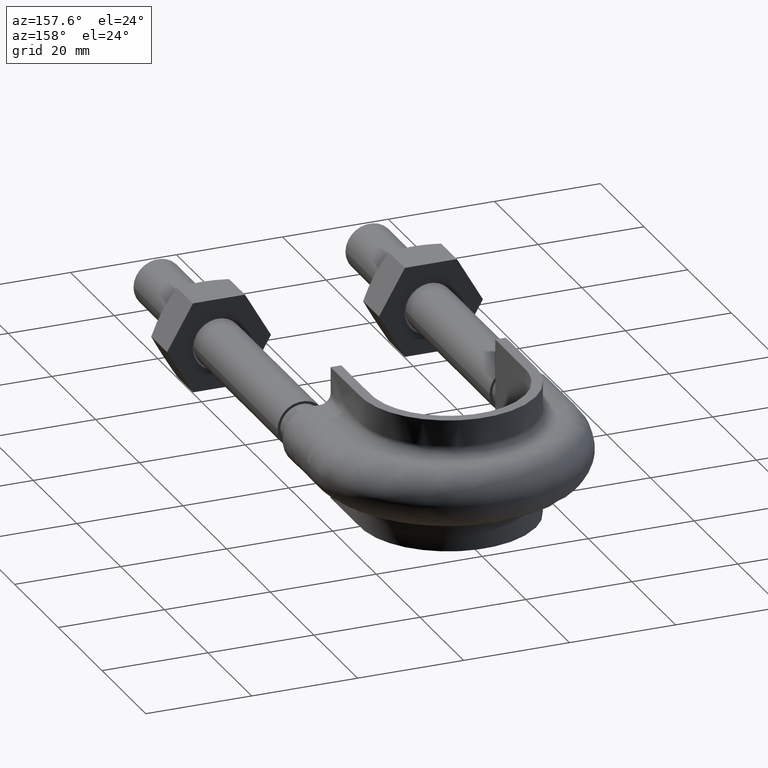
[diagram: clean part render]
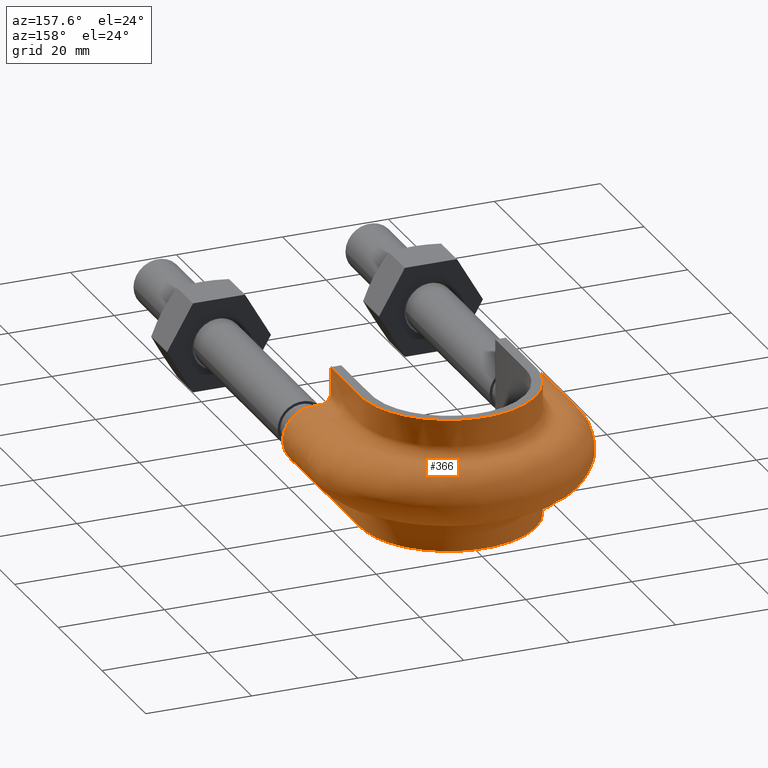
[diagram: same view with one face highlighted and labeled with its STEP entity id]
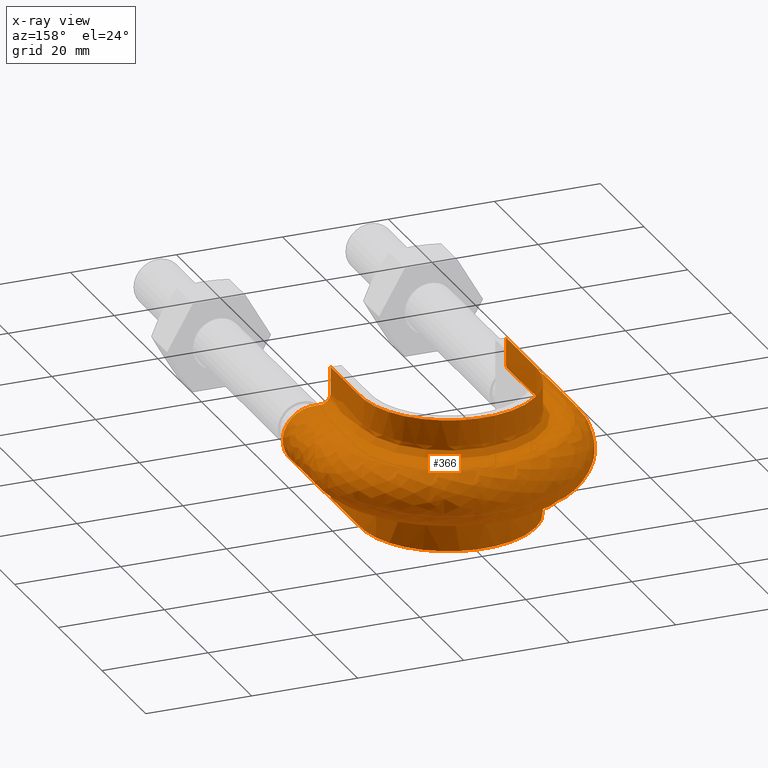
[diagram: x-ray of the same camera — body ghosted, the highlighted face saturated]
A machine part, auxiliary view. The second image highlights one B-rep face of the part: STEP entity #366.
The next image is the same camera in x-ray: the body ghosted, the highlighted face saturated — about 0% of this face is hidden behind the body in this view.
In plain terms, the highlighted face is a freeform B-spline surface patch.
Its self-contained STEP definition (entity closure, byte-faithful):
#366 = ADVANCED_FACE( '', ( #444 ), #445, .F. );
#444 = FACE_OUTER_BOUND( '', #609, .T. );
#445 = B_SPLINE_SURFACE_WITH_KNOTS( '', 3, 3, ( ( #610, #611, #612, #613, #614, #615, #616, #617, #618, #619, #620, #621, #622, #623, #624, #625 ), ( #626, #627, #628, #629, #630, #631, #632, #633, #634, #635, #636, #637, #638, #639, #640, #641 ), ( #642, #643, #644, #645, #646, #647, #648, #649, #650, #651, #652, #653, #654, #655, #656, #657 ), ( #658, #659, #660, #661, #662, #663, #664, #665, #666, #667, #668, #669, #670, #671, #672, #673 ), ( #674, #675, #676, #677, #678, #679, #680, #681, #682, #683, #684, #685, #686, #687, #688, #689 ), ( #690, #691, #692, #693, #694, #695, #696, #697, #698, #699, #700, #701, #702, #703, #704, #705 ), ( #706, #707, #708, #709, #710, #711, #712, #713, #714, #715, #716, #717, #718, #719, #720, #721 ), ( #722, #723, #724, #725, #726, #727, #728, #729, #730, #731, #732, #733, #734, #735, #736, #737 ), ( #738, #739, #740, #741, #742, #743, #744, #745, #746, #747, #748, #749, #750, #751, #752, #753 ), ( #754, #755, #756, #757, #758, #759, #760, #761, #762, #763, #764, #765, #766, #767, #768, #769 ), ( #770, #771, #772, #773, #774, #775, #776, #777, #778, #779, #780, #781, #782, #783, #784, #785 ), ( #786, #787, #788, #789, #790, #791, #792, #793, #794, #795, #796, #797, #798, #799, #800, #801 ), ( #802, #803, #804, #805, #806, #807, #808, #809, #810, #811, #812, #813, #814, #815, #816, #817 ), ( #818, #819, #820, #821, #822, #823, #824, #825, #826, #827, #828, #829, #830, #831, #832, #833 ), ( #834, #835, #836, #837, #838, #839, #840, #841, #842, #843, #844, #845, #846, #847, #848, #849 ), ( #850, #851, #852, #853, #854, #855, #856, #857, #858, #859, #860, #861, #862, #863, #864, #865 ), ( #866, #867, #868, #869, #870, #871, #872, #873, #874, #875, #876, #877, #878, #879, #880, #881 ), ( #882, #883, #884, #885, #886, #887, #888, #889, #890, #891, #892, #893, #894, #895, #896, #897 ), ( #898, #899, #900, #901, #902, #903, #904, #905, #906, #907, #908, #909, #910, #911, #912, #913 ), ( #914, #915, #916, #917, #918, #919, #920, #921, #922, #923, #924, #925, #926, #927, #928, #929 ), ( #930, #931, #932, #933, #934, #935, #936, #937, #938, #939, #940, #941, #942, #943, #944, #945 ), ( #946, #947, #948, #949, #950, #951, #952, #953, #954, #955, #956, #957, #958, #959, #960, #961 ), ( #962, #963, #964, #965, #966, #967, #968, #969, #970, #971, #972, #973, #974, #975, #976, #977 ), ( #978, #979, #980, #981, #982, #983, #984, #985, #986, #987, #988, #989, #990, #991, #992, #993 ), ( #994, #995, #996, #997, #998, #999, #1000, #1001, #1002, #1003, #1004, #1005, #1006, #1007, #1008, #1009 ), ( #1010, #1011, #1012, #1013, #1014, #1015, #1016, #1017, #1018, #1019, #1020, #1021, #1022, #1023, #1024, #1025 ), ( #1026, #1027, #1028, #1029, #1030, #1031, #1032, #1033, #1034, #1035, #1036, #1037, #1038, #1039, #1040, #1041 ), ( #1042, #1043, #1044, #1045, #1046, #1047, #1048, #1049, #1050, #1051, #1052, #1053, #1054, #1055, #1056, #1057 ), ( #1058, #1059, #1060, #1061, #1062, #1063, #1064, #1065, #1066, #1067, #1068, #1069, #1070, #1071, #1072, #1073 ), ( #1074, #1075, #1076, #1077, #1078, #1079, #1080, #1081, #1082, #1083, #1084, #1085, #1086, #1087, #1088, #1089 ), ( #1090, #1091, #1092, #1093, #1094, #1095, #1096, #1097, #1098, #1099, #1100, #1101, #1102, #1103, #1104, #1105 ) ), .UNSPECIFIED., .F., .F., .F., ( 4, 3, 1, 1, 1, 3, 3, 1, 1, 1, 3, 3, 1, 1, 1, 3, 4 ), ( 4, 3, 1, 1, 1, 1, 1, 1, 3, 4 ), ( 0.000000000000000, 0.0526315789473684, 0.105263157894737, 0.157894736842105, 0.210526315789474, 0.263157894736842, 0.315789473684211, 0.368421052631579, 0.421052631578947, 0.473684210526316, 0.526315789473684, 0.578947368421053, 0.631578947368421, 0.684210526315789, 0.736842105263158, 0.789473684210526, 0.842105263157895 ), ( 0.000000000000000, 1.00000000000000, 1.50000000000000, 2.00000000000000, 3.00000000000000, 4.00000000000000, 5.00000000000000, 5.50000000000000, 6.00000000000000, 7.00000000000000 ), .UNSPECIFIED. );
#609 = EDGE_LOOP( '', ( #1615, #1616, #1617, #1618 ) );
#610 = CARTESIAN_POINT( '', ( -16.5400000000000, 68.3700000000000, 12.5000000000000 ) );
#611 = CARTESIAN_POINT( '', ( -16.5400000000000, 73.7366666666667, 12.5000000000000 ) );
#612 = CARTESIAN_POINT( '', ( -16.5400000000000, 79.1033333333333, 12.5000000000000 ) );
#613 = CARTESIAN_POINT( '', ( -16.5400000000000, 84.4700000000000, 12.5000000000000 ) );
#614 = CARTESIAN_POINT( '', ( -16.5400000000000, 86.1877537522751, 12.5000000000000 ) );
#615 = CARTESIAN_POINT( '', ( -15.9750629169901, 89.6663680937660, 12.5000000000000 ) );
#616 = CARTESIAN_POINT( '', ( -12.8204249288649, 95.9196671029178, 12.5000000000000 ) );
#617 = CARTESIAN_POINT( '', ( -5.45797735968996, 101.270676698673, 12.5000000000000 ) );
#618 = CARTESIAN_POINT( '', ( 5.45797735969001, 101.270676698673, 12.5000000000000 ) );
#619 = CARTESIAN_POINT( '', ( 12.8204249288649, 95.9196671029177, 12.5000000000000 ) );
#620 = CARTESIAN_POINT( '', ( 15.9750629169902, 89.6663680937660, 12.5000000000000 ) );
#621 = CARTESIAN_POINT( '', ( 16.5400000000000, 86.1877537522751, 12.5000000000000 ) );
#622 = CARTESIAN_POINT( '', ( 16.5400000000000, 84.4700000000000, 12.5000000000000 ) );
#623 = CARTESIAN_POINT( '', ( 16.5400000000000, 79.1033333333333, 12.5000000000000 ) );
#624 = CARTESIAN_POINT( '', ( 16.5400000000000, 73.7366666666667, 12.5000000000000 ) );
#625 = CARTESIAN_POINT( '', ( 16.5400000000000, 68.3700000000000, 12.5000000000000 ) );
#626 = CARTESIAN_POINT( '', ( -16.5400000000000, 68.3700000000000, 10.8666666666667 ) );
#627 = CARTESIAN_POINT( '', ( -16.5400000000000, 73.7366666666667, 10.8666666666667 ) );
#628 = CARTESIAN_POINT( '', ( -16.5400000000000, 79.1033333333333, 10.8666666666667 ) );
#629 = CARTESIAN_POINT( '', ( -16.5400000000000, 84.4700000000000, 10.8666666666667 ) );
#630 = CARTESIAN_POINT( '', ( -16.5400000000000, 86.1877537522751, 10.8666666666667 ) );
#631 = CARTESIAN_POINT( '', ( -15.9750629169901, 89.6663680937660, 10.8666666666667 ) );
#632 = CARTESIAN_POINT( '', ( -12.8204249288649, 95.9196671029178, 10.8666666666667 ) );
#633 = CARTESIAN_POINT( '', ( -5.45797735968996, 101.270676698673, 10.8666666666667 ) );
#634 = CARTESIAN_POINT( '', ( 5.45797735969001, 101.270676698673, 10.8666666666667 ) );
#635 = CARTESIAN_POINT( '', ( 12.8204249288649, 95.9196671029177, 10.8666666666667 ) );
#636 = CARTESIAN_POINT( '', ( 15.9750629169902, 89.6663680937660, 10.8666666666667 ) );
#637 = CARTESIAN_POINT( '', ( 16.5400000000000, 86.1877537522751, 10.8666666666667 ) );
#638 = CARTESIAN_POINT( '', ( 16.5400000000000, 84.4700000000000, 10.8666666666667 ) );
#639 = CARTESIAN_POINT( '', ( 16.5400000000000, 79.1033333333333, 10.8666666666667 ) );
#640 = CARTESIAN_POINT( '', ( 16.5400000000000, 73.7366666666667, 10.8666666666667 ) );
#641 = CARTESIAN_POINT( '', ( 16.5400000000000, 68.3700000000000, 10.8666666666667 ) );
#642 = CARTESIAN_POINT( '', ( -16.5400000000000, 68.3700000000000, 9.23333333333332 ) );
#643 = CARTESIAN_POINT( '', ( -16.5400000000000, 73.7366666666667, 9.23333333333332 ) );
#644 = CARTESIAN_POINT( '', ( -16.5400000000000, 79.1033333333333, 9.23333333333332 ) );
#645 = CARTESIAN_POINT( '', ( -16.5400000000000, 84.4700000000000, 9.23333333333332 ) );
#646 = CARTESIAN_POINT( '', ( -16.5400000000000, 86.1877537522751, 9.23333333333332 ) );
#647 = CARTESIAN_POINT( '', ( -15.9750629169901, 89.6663680937660, 9.23333333333332 ) );
#648 = CARTESIAN_POINT( '', ( -12.8204249288649, 95.9196671029178, 9.23333333333332 ) );
#649 = CARTESIAN_POINT( '', ( -5.45797735968996, 101.270676698673, 9.23333333333333 ) );
#650 = CARTESIAN_POINT( '', ( 5.45797735969001, 101.270676698673, 9.23333333333331 ) );
#651 = CARTESIAN_POINT( '', ( 12.8204249288649, 95.9196671029177, 9.23333333333332 ) );
#652 = CARTESIAN_POINT( '', ( 15.9750629169902, 89.6663680937660, 9.23333333333332 ) );
#653 = CARTESIAN_POINT( '', ( 16.5400000000000, 86.1877537522751, 9.23333333333332 ) );
#654 = CARTESIAN_POINT( '', ( 16.5400000000000, 84.4700000000000, 9.23333333333332 ) );
#655 = CARTESIAN_POINT( '', ( 16.5400000000000, 79.1033333333333, 9.23333333333332 ) );
#656 = CARTESIAN_POINT( '', ( 16.5400000000000, 73.7366666666667, 9.23333333333332 ) );
#657 = CARTESIAN_POINT( '', ( 16.5400000000000, 68.3700000000000, 9.23333333333332 ) );
#658 = CARTESIAN_POINT( '', ( -16.5400000000000, 68.3700000000000, 7.59999999999998 ) );
#659 = CARTESIAN_POINT( '', ( -16.5400000000000, 73.7366666666667, 7.59999999999998 ) );
#660 = CARTESIAN_POINT( '', ( -16.5400000000000, 79.1033333333333, 7.59999999999998 ) );
#661 = CARTESIAN_POINT( '', ( -16.5400000000000, 84.4700000000000, 7.59999999999998 ) );
#662 = CARTESIAN_POINT( '', ( -16.5400000000000, 86.1877537522751, 7.59999999999998 ) );
#663 = CARTESIAN_POINT( '', ( -15.9750629169901, 89.6663680937660, 7.59999999999998 ) );
#664 = CARTESIAN_POINT( '', ( -12.8204249288649, 95.9196671029178, 7.59999999999998 ) );
#665 = CARTESIAN_POINT( '', ( -5.45797735968996, 101.270676698673, 7.59999999999999 ) );
#666 = CARTESIAN_POINT( '', ( 5.45797735969001, 101.270676698673, 7.59999999999998 ) );
#667 = CARTESIAN_POINT( '', ( 12.8204249288649, 95.9196671029177, 7.59999999999998 ) );
#668 = CARTESIAN_POINT( '', ( 15.9750629169902, 89.6663680937660, 7.59999999999998 ) );
#669 = CARTESIAN_POINT( '', ( 16.5400000000000, 86.1877537522751, 7.59999999999998 ) );
#670 = CARTESIAN_POINT( '', ( 16.5400000000000, 84.4700000000000, 7.59999999999998 ) );
#671 = CARTESIAN_POINT( '', ( 16.5400000000000, 79.1033333333333, 7.59999999999998 ) );
#672 = CARTESIAN_POINT( '', ( 16.5400000000000, 73.7366666666667, 7.59999999999998 ) );
#673 = CARTESIAN_POINT( '', ( 16.5400000000000, 68.3700000000000, 7.59999999999998 ) );
#674 = CARTESIAN_POINT( '', ( -16.5400000000000, 68.3700000000000, 7.33823584172332 ) );
#675 = CARTESIAN_POINT( '', ( -16.5400000000000, 73.7366666666667, 7.33823584172332 ) );
#676 = CARTESIAN_POINT( '', ( -16.5400000000000, 79.1033333333333, 7.33823584172332 ) );
#677 = CARTESIAN_POINT( '', ( -16.5400000000000, 84.4700000000000, 7.33823584172332 ) );
#678 = CARTESIAN_POINT( '', ( -16.5400000000000, 86.1877537522751, 7.33823584172332 ) );
#679 = CARTESIAN_POINT( '', ( -15.9750629169901, 89.6663680937660, 7.33823584172332 ) );
#680 = CARTESIAN_POINT( '', ( -12.8204249288649, 95.9196671029178, 7.33823584172332 ) );
#681 = CARTESIAN_POINT( '', ( -5.45797735968996, 101.270676698673, 7.33823584172333 ) );
#682 = CARTESIAN_POINT( '', ( 5.45797735969001, 101.270676698673, 7.33823584172331 ) );
#683 = CARTESIAN_POINT( '', ( 12.8204249288649, 95.9196671029177, 7.33823584172332 ) );
#684 = CARTESIAN_POINT( '', ( 15.9750629169902, 89.6663680937660, 7.33823584172331 ) );
#685 = CARTESIAN_POINT( '', ( 16.5400000000000, 86.1877537522751, 7.33823584172332 ) );
#686 = CARTESIAN_POINT( '', ( 16.5400000000000, 84.4700000000000, 7.33823584172332 ) );
#687 = CARTESIAN_POINT( '', ( 16.5400000000000, 79.1033333333333, 7.33823584172332 ) );
#688 = CARTESIAN_POINT( '', ( 16.5400000000000, 73.7366666666667, 7.33823584172332 ) );
#689 = CARTESIAN_POINT( '', ( 16.5400000000000, 68.3700000000000, 7.33823584172332 ) );
#690 = CARTESIAN_POINT( '', ( -16.6441362568359, 68.3700000000000, 6.81470752516999 ) );
#691 = CARTESIAN_POINT( '', ( -16.6441362568359, 73.7366666666667, 6.81470752516999 ) );
#692 = CARTESIAN_POINT( '', ( -16.6441362568359, 79.1033333333333, 6.81470752516999 ) );
#693 = CARTESIAN_POINT( '', ( -16.6441362568359, 84.4700000000000, 6.81470752516999 ) );
#694 = CARTESIAN_POINT( '', ( -16.6441362568359, 86.1990323925878, 6.81470752516999 ) );
#695 = CARTESIAN_POINT( '', ( -16.0757393344532, 89.6989066202985, 6.81470752516999 ) );
#696 = CARTESIAN_POINT( '', ( -12.9010860530488, 95.9918561743733, 6.81470752516999 ) );
#697 = CARTESIAN_POINT( '', ( -5.49236517738159, 101.376428762867, 6.81470752517000 ) );
#698 = CARTESIAN_POINT( '', ( 5.49236517738164, 101.376428762867, 6.81470752516999 ) );
#699 = CARTESIAN_POINT( '', ( 12.9010860530489, 95.9918561743733, 6.81470752517000 ) );
#700 = CARTESIAN_POINT( '', ( 16.0757393344532, 89.6989066202985, 6.81470752516999 ) );
#701 = CARTESIAN_POINT( '', ( 16.6441362568359, 86.1990323925878, 6.81470752516999 ) );
#702 = CARTESIAN_POINT( '', ( 16.6441362568359, 84.4700000000000, 6.81470752516999 ) );
#703 = CARTESIAN_POINT( '', ( 16.6441362568359, 79.1033333333333, 6.81470752516999 ) );
#704 = CARTESIAN_POINT( '', ( 16.6441362568359, 73.7366666666667, 6.81470752516999 ) );
#705 = CARTESIAN_POINT( '', ( 16.6441362568359, 68.3700000000000, 6.81470752516999 ) );
#706 = CARTESIAN_POINT( '', ( -17.0889687109389, 68.3700000000000, 6.14896871093886 ) );
#707 = CARTESIAN_POINT( '', ( -17.0889687109389, 73.7366666666667, 6.14896871093886 ) );
#708 = CARTESIAN_POINT( '', ( -17.0889687109389, 79.1033333333333, 6.14896871093886 ) );
#709 = CARTESIAN_POINT( '', ( -17.0889687109389, 84.4700000000000, 6.14896871093886 ) );
#710 = CARTESIAN_POINT( '', ( -17.0889687109389, 86.2472106678750, 6.14896871093886 ) );
#711 = CARTESIAN_POINT( '', ( -16.5057926051497, 89.8378994461414, 6.14896871093886 ) );
#712 = CARTESIAN_POINT( '', ( -13.2456412244336, 96.3002217983230, 6.14896871093886 ) );
#713 = CARTESIAN_POINT( '', ( -5.63925750671812, 101.828163362047, 6.14896871093887 ) );
#714 = CARTESIAN_POINT( '', ( 5.63925750671816, 101.828163362047, 6.14896871093886 ) );
#715 = CARTESIAN_POINT( '', ( 13.2456412244336, 96.3002217983229, 6.14896871093886 ) );
#716 = CARTESIAN_POINT( '', ( 16.5057926051498, 89.8378994461414, 6.14896871093886 ) );
#717 = CARTESIAN_POINT( '', ( 17.0889687109389, 86.2472106678750, 6.14896871093886 ) );
#718 = CARTESIAN_POINT( '', ( 17.0889687109389, 84.4700000000000, 6.14896871093886 ) );
#719 = CARTESIAN_POINT( '', ( 17.0889687109389, 79.1033333333333, 6.14896871093886 ) );
#720 = CARTESIAN_POINT( '', ( 17.0889687109389, 73.7366666666667, 6.14896871093886 ) );
#721 = CARTESIAN_POINT( '', ( 17.0889687109389, 68.3700000000000, 6.14896871093886 ) );
#722 = CARTESIAN_POINT( '', ( -17.7547075251700, 68.3700000000000, 5.70413625683589 ) );
#723 = CARTESIAN_POINT( '', ( -17.7547075251700, 73.7366666666667, 5.70413625683589 ) );
#724 = CARTESIAN_POINT( '', ( -17.7547075251700, 79.1033333333333, 5.70413625683589 ) );
#725 = CARTESIAN_POINT( '', ( -17.7547075251700, 84.4700000000000, 5.70413625683589 ) );
#726 = CARTESIAN_POINT( '', ( -17.7547075251700, 86.3193145523051, 5.70413625683589 ) );
#727 = CARTESIAN_POINT( '', ( -17.1494128083274, 90.0459169102670, 5.70413625683589 ) );
#728 = CARTESIAN_POINT( '', ( -13.7613044794842, 96.7617235681340, 5.70413625683589 ) );
#729 = CARTESIAN_POINT( '', ( -5.85909741329452, 102.504231966376, 5.70413625683590 ) );
#730 = CARTESIAN_POINT( '', ( 5.85909741329457, 102.504231966376, 5.70413625683589 ) );
#731 = CARTESIAN_POINT( '', ( 13.7613044794843, 96.7617235681339, 5.70413625683589 ) );
#732 = CARTESIAN_POINT( '', ( 17.1494128083274, 90.0459169102670, 5.70413625683589 ) );
#733 = CARTESIAN_POINT( '', ( 17.7547075251700, 86.3193145523051, 5.70413625683589 ) );
#734 = CARTESIAN_POINT( '', ( 17.7547075251700, 84.4700000000000, 5.70413625683589 ) );
#735 = CARTESIAN_POINT( '', ( 17.7547075251700, 79.1033333333333, 5.70413625683589 ) );
#736 = CARTESIAN_POINT( '', ( 17.7547075251700, 73.7366666666667, 5.70413625683589 ) );
#737 = CARTESIAN_POINT( '', ( 17.7547075251700, 68.3700000000000, 5.70413625683589 ) );
#738 = CARTESIAN_POINT( '', ( -18.2782358417233, 68.3700000000000, 5.59999999999998 ) );
#739 = CARTESIAN_POINT( '', ( -18.2782358417233, 73.7366666666667, 5.59999999999998 ) );
#740 = CARTESIAN_POINT( '', ( -18.2782358417233, 79.1033333333333, 5.59999999999998 ) );
#741 = CARTESIAN_POINT( '', ( -18.2782358417233, 84.4700000000000, 5.59999999999998 ) );
#742 = CARTESIAN_POINT( '', ( -18.2782358417233, 86.3760161061664, 5.59999999999998 ) );
#743 = CARTESIAN_POINT( '', ( -17.6555473377651, 90.2094991297192, 5.59999999999998 ) );
#744 = CARTESIAN_POINT( '', ( -14.1668153345736, 97.1246425379624, 5.59999999999998 ) );
#745 = CARTESIAN_POINT( '', ( -6.03197664722367, 103.035883495073, 5.59999999999999 ) );
#746 = CARTESIAN_POINT( '', ( 6.03197664722372, 103.035883495073, 5.59999999999998 ) );
#747 = CARTESIAN_POINT( '', ( 14.1668153345737, 97.1246425379623, 5.59999999999998 ) );
#748 = CARTESIAN_POINT( '', ( 17.6555473377651, 90.2094991297192, 5.59999999999998 ) );
#749 = CARTESIAN_POINT( '', ( 18.2782358417234, 86.3760161061664, 5.59999999999998 ) );
#750 = CARTESIAN_POINT( '', ( 18.2782358417234, 84.4700000000000, 5.59999999999998 ) );
#751 = CARTESIAN_POINT( '', ( 18.2782358417234, 79.1033333333333, 5.59999999999998 ) );
#752 = CARTESIAN_POINT( '', ( 18.2782358417234, 73.7366666666667, 5.59999999999998 ) );
#753 = CARTESIAN_POINT( '', ( 18.2782358417234, 68.3700000000000, 5.59999999999998 ) );
#754 = CARTESIAN_POINT( '', ( -18.5400000000000, 68.3700000000000, 5.59999999999998 ) );
#755 = CARTESIAN_POINT( '', ( -18.5400000000000, 73.7366666666667, 5.59999999999998 ) );
#756 = CARTESIAN_POINT( '', ( -18.5400000000000, 79.1033333333333, 5.59999999999998 ) );
#757 = CARTESIAN_POINT( '', ( -18.5400000000000, 84.4700000000000, 5.59999999999998 ) );
#758 = CARTESIAN_POINT( '', ( -18.5400000000000, 86.4043668830971, 5.59999999999998 ) );
#759 = CARTESIAN_POINT( '', ( -17.9086146024839, 90.2912902394453, 5.59999999999998 ) );
#760 = CARTESIAN_POINT( '', ( -14.3695707621183, 97.3061020228766, 5.59999999999998 ) );
#761 = CARTESIAN_POINT( '', ( -6.11841626418825, 103.301709259421, 5.59999999999999 ) );
#762 = CARTESIAN_POINT( '', ( 6.11841626418830, 103.301709259421, 5.59999999999998 ) );
#763 = CARTESIAN_POINT( '', ( 14.3695707621184, 97.3061020228765, 5.59999999999998 ) );
#764 = CARTESIAN_POINT( '', ( 17.9086146024840, 90.2912902394453, 5.59999999999998 ) );
#765 = CARTESIAN_POINT( '', ( 18.5400000000000, 86.4043668830970, 5.59999999999998 ) );
#766 = CARTESIAN_POINT( '', ( 18.5400000000000, 84.4700000000000, 5.59999999999998 ) );
#767 = CARTESIAN_POINT( '', ( 18.5400000000000, 79.1033333333333, 5.59999999999998 ) );
#768 = CARTESIAN_POINT( '', ( 18.5400000000000, 73.7366666666667, 5.59999999999998 ) );
#769 = CARTESIAN_POINT( '', ( 18.5400000000000, 68.3700000000000, 5.59999999999998 ) );
#770 = CARTESIAN_POINT( '', ( -19.0266666666667, 68.3700000000000, 5.60000000000000 ) );
#771 = CARTESIAN_POINT( '', ( -19.0266666666667, 73.7366666666667, 5.60000000000000 ) );
#772 = CARTESIAN_POINT( '', ( -19.0266666666667, 79.1033333333333, 5.60000000000000 ) );
#773 = CARTESIAN_POINT( '', ( -19.0266666666667, 84.4700000000000, 5.60000000000000 ) );
#774 = CARTESIAN_POINT( '', ( -19.0266666666667, 86.4570760782637, 5.60000000000000 ) );
#775 = CARTESIAN_POINT( '', ( -18.3791121792874, 90.4433546282273, 5.60000000000000 ) );
#776 = CARTESIAN_POINT( '', ( -14.7465295815433, 97.6434678533999, 5.60000000000000 ) );
#777 = CARTESIAN_POINT( '', ( -6.27912306428284, 103.795927182536, 5.60000000000001 ) );
#778 = CARTESIAN_POINT( '', ( 6.27912306428289, 103.795927182536, 5.60000000000000 ) );
#779 = CARTESIAN_POINT( '', ( 14.7465295815434, 97.6434678533999, 5.60000000000000 ) );
#780 = CARTESIAN_POINT( '', ( 18.3791121792875, 90.4433546282273, 5.60000000000000 ) );
#781 = CARTESIAN_POINT( '', ( 19.0266666666667, 86.4570760782637, 5.60000000000000 ) );
#782 = CARTESIAN_POINT( '', ( 19.0266666666667, 84.4700000000000, 5.60000000000000 ) );
#783 = CARTESIAN_POINT( '', ( 19.0266666666667, 79.1033333333333, 5.60000000000000 ) );
#784 = CARTESIAN_POINT( '', ( 19.0266666666667, 73.7366666666667, 5.60000000000000 ) );
#785 = CARTESIAN_POINT( '', ( 19.0266666666667, 68.3700000000000, 5.60000000000000 ) );
#786 = CARTESIAN_POINT( '', ( -19.5133333333333, 68.3700000000000, 5.60000000000000 ) );
#787 = CARTESIAN_POINT( '', ( -19.5133333333333, 73.7366666666667, 5.60000000000000 ) );
#788 = CARTESIAN_POINT( '', ( -19.5133333333333, 79.1033333333333, 5.60000000000000 ) );
#789 = CARTESIAN_POINT( '', ( -19.5133333333333, 84.4700000000000, 5.60000000000000 ) );
#790 = CARTESIAN_POINT( '', ( -19.5133333333333, 86.5097852734304, 5.60000000000000 ) );
#791 = CARTESIAN_POINT( '', ( -18.8496097560909, 90.5954190170092, 5.60000000000000 ) );
#792 = CARTESIAN_POINT( '', ( -15.1234884009683, 97.9808336839232, 5.60000000000000 ) );
#793 = CARTESIAN_POINT( '', ( -6.43982986437742, 104.290145105652, 5.60000000000001 ) );
#794 = CARTESIAN_POINT( '', ( 6.43982986437747, 104.290145105652, 5.60000000000000 ) );
#795 = CARTESIAN_POINT( '', ( 15.1234884009684, 97.9808336839232, 5.60000000000000 ) );
#796 = CARTESIAN_POINT( '', ( 18.8496097560909, 90.5954190170092, 5.60000000000000 ) );
#797 = CARTESIAN_POINT( '', ( 19.5133333333334, 86.5097852734304, 5.60000000000000 ) );
#798 = CARTESIAN_POINT( '', ( 19.5133333333334, 84.4700000000000, 5.60000000000000 ) );
#799 = CARTESIAN_POINT( '', ( 19.5133333333334, 79.1033333333333, 5.60000000000000 ) );
#800 = CARTESIAN_POINT( '', ( 19.5133333333334, 73.7366666666667, 5.60000000000000 ) );
#801 = CARTESIAN_POINT( '', ( 19.5133333333334, 68.3700000000000, 5.60000000000000 ) );
#802 = CARTESIAN_POINT( '', ( -20.0000000000000, 68.3700000000000, 5.60000000000000 ) );
#803 = CARTESIAN_POINT( '', ( -20.0000000000000, 73.7366666666667, 5.60000000000000 ) );
#804 = CARTESIAN_POINT( '', ( -20.0000000000000, 79.1033333333333, 5.60000000000000 ) );
#805 = CARTESIAN_POINT( '', ( -20.0000000000000, 84.4700000000000, 5.60000000000000 ) );
#806 = CARTESIAN_POINT( '', ( -20.0000000000000, 86.5624944685971, 5.60000000000000 ) );
#807 = CARTESIAN_POINT( '', ( -19.3201073328944, 90.7474834057912, 5.60000000000000 ) );
#808 = CARTESIAN_POINT( '', ( -15.5004472203933, 98.3181995144465, 5.60000000000000 ) );
#809 = CARTESIAN_POINT( '', ( -6.60053666447200, 104.784363028767, 5.60000000000001 ) );
#810 = CARTESIAN_POINT( '', ( 6.60053666447204, 104.784363028767, 5.60000000000000 ) );
#811 = CARTESIAN_POINT( '', ( 15.5004472203934, 98.3181995144465, 5.60000000000000 ) );
#812 = CARTESIAN_POINT( '', ( 19.3201073328944, 90.7474834057912, 5.60000000000000 ) );
#813 = CARTESIAN_POINT( '', ( 20.0000000000000, 86.5624944685970, 5.60000000000000 ) );
#814 = CARTESIAN_POINT( '', ( 20.0000000000000, 84.4700000000000, 5.60000000000000 ) );
#815 = CARTESIAN_POINT( '', ( 20.0000000000000, 79.1033333333333, 5.60000000000000 ) );
#816 = CARTESIAN_POINT( '', ( 20.0000000000000, 73.7366666666667, 5.60000000000000 ) );
#817 = CARTESIAN_POINT( '', ( 20.0000000000000, 68.3700000000000, 5.60000000000000 ) );
#818 = CARTESIAN_POINT( '', ( -21.4627416997969, 68.3700000000000, 5.60000000000001 ) );
#819 = CARTESIAN_POINT( '', ( -21.4627416997969, 73.7366666666667, 5.60000000000001 ) );
#820 = CARTESIAN_POINT( '', ( -21.4627416997969, 79.1033333333333, 5.60000000000001 ) );
#821 = CARTESIAN_POINT( '', ( -21.4627416997969, 84.4700000000000, 5.60000000000001 ) );
#822 = CARTESIAN_POINT( '', ( -21.4627416997969, 86.7209189981855, 5.60000000000001 ) );
#823 = CARTESIAN_POINT( '', ( -20.7342506724366, 91.2045332465970, 5.60000000000000 ) );
#824 = CARTESIAN_POINT( '', ( -16.6334473250766, 99.3321976001857, 5.60000000000001 ) );
#825 = CARTESIAN_POINT( '', ( -7.08356242736093, 106.269801038893, 5.60000000000001 ) );
#826 = CARTESIAN_POINT( '', ( 7.08356242736097, 106.269801038893, 5.60000000000000 ) );
#827 = CARTESIAN_POINT( '', ( 16.6334473250766, 99.3321976001857, 5.60000000000001 ) );
#828 = CARTESIAN_POINT( '', ( 20.7342506724366, 91.2045332465970, 5.60000000000000 ) );
#829 = CARTESIAN_POINT( '', ( 21.4627416997969, 86.7209189981855, 5.60000000000001 ) );
#830 = CARTESIAN_POINT( '', ( 21.4627416997969, 84.4700000000000, 5.60000000000001 ) );
#831 = CARTESIAN_POINT( '', ( 21.4627416997970, 79.1033333333333, 5.60000000000001 ) );
#832 = CARTESIAN_POINT( '', ( 21.4627416997970, 73.7366666666667, 5.60000000000001 ) );
#833 = CARTESIAN_POINT( '', ( 21.4627416997969, 68.3700000000000, 5.60000000000001 ) );
#834 = CARTESIAN_POINT( '', ( -24.3882250993908, 68.3700000000000, 4.38822509939086 ) );
#835 = CARTESIAN_POINT( '', ( -24.3882250993908, 73.7366666666667, 4.38822509939086 ) );
#836 = CARTESIAN_POINT( '', ( -24.3882250993908, 79.1033333333333, 4.38822509939086 ) );
#837 = CARTESIAN_POINT( '', ( -24.3882250993908, 84.4700000000000, 4.38822509939086 ) );
#838 = CARTESIAN_POINT( '', ( -24.3882250993908, 87.0377680573623, 4.38822509939086 ) );
#839 = CARTESIAN_POINT( '', ( -23.5625373515211, 92.1186329282087, 4.38822509939086 ) );
#840 = CARTESIAN_POINT( '', ( -18.8994475344431, 101.360193771664, 4.38822509939087 ) );
#841 = CARTESIAN_POINT( '', ( -8.04961395313880, 109.240677059145, 4.38822509939087 ) );
#842 = CARTESIAN_POINT( '', ( 8.04961395313884, 109.240677059145, 4.38822509939086 ) );
#843 = CARTESIAN_POINT( '', ( 18.8994475344432, 101.360193771664, 4.38822509939087 ) );
#844 = CARTESIAN_POINT( '', ( 23.5625373515211, 92.1186329282087, 4.38822509939086 ) );
#845 = CARTESIAN_POINT( '', ( 24.3882250993909, 87.0377680573623, 4.38822509939086 ) );
#846 = CARTESIAN_POINT( '', ( 24.3882250993909, 84.4700000000000, 4.38822509939086 ) );
#847 = CARTESIAN_POINT( '', ( 24.3882250993909, 79.1033333333333, 4.38822509939086 ) );
#848 = CARTESIAN_POINT( '', ( 24.3882250993909, 73.7366666666667, 4.38822509939086 ) );
#849 = CARTESIAN_POINT( '', ( 24.3882250993909, 68.3700000000000, 4.38822509939086 ) );
#850 = CARTESIAN_POINT( '', ( -26.2058874503046, 68.3700000000000, 2.59688645100852E-015 ) );
#851 = CARTESIAN_POINT( '', ( -26.2058874503046, 73.7366666666667, 2.59688645100852E-015 ) );
#852 = CARTESIAN_POINT( '', ( -26.2058874503046, 79.1033333333333, 2.59688645100852E-015 ) );
#853 = CARTESIAN_POINT( '', ( -26.2058874503046, 84.4700000000000, 2.59688645100852E-015 ) );
#854 = CARTESIAN_POINT( '', ( -26.2058874503046, 87.2346328236666, 2.59688645100852E-015 ) );
#855 = CARTESIAN_POINT( '', ( -25.3198094026550, 92.6865816564354, 2.59688645100852E-015 ) );
#856 = CARTESIAN_POINT( '', ( -20.3073595630330, 102.620229049665, 2.59688645100852E-015 ) );
#857 = CARTESIAN_POINT( '', ( -8.64984141903142, 111.086542768721, 2.59688645100852E-015 ) );
#858 = CARTESIAN_POINT( '', ( 8.64984141903147, 111.086542768721, 2.59688645100852E-015 ) );
#859 = CARTESIAN_POINT( '', ( 20.3073595630330, 102.620229049665, 2.59688645100852E-015 ) );
#860 = CARTESIAN_POINT( '', ( 25.3198094026550, 92.6865816564354, 2.59688645100852E-015 ) );
#861 = CARTESIAN_POINT( '', ( 26.2058874503046, 87.2346328236666, 2.59688645100852E-015 ) );
#862 = CARTESIAN_POINT( '', ( 26.2058874503046, 84.4700000000000, 2.59688645100852E-015 ) );
#863 = CARTESIAN_POINT( '', ( 26.2058874503046, 79.1033333333333, 2.59688645100852E-015 ) );
#864 = CARTESIAN_POINT( '', ( 26.2058874503046, 73.7366666666667, 2.59688645100852E-015 ) );
#865 = CARTESIAN_POINT( '', ( 26.2058874503046, 68.3700000000000, 2.59688645100852E-015 ) );
#866 = CARTESIAN_POINT( '', ( -24.3882250993908, 68.3700000000000, -4.38822509939086 ) );
#867 = CARTESIAN_POINT( '', ( -24.3882250993908, 73.7366666666667, -4.38822509939086 ) );
#868 = CARTESIAN_POINT( '', ( -24.3882250993908, 79.1033333333333, -4.38822509939086 ) );
#869 = CARTESIAN_POINT( '', ( -24.3882250993908, 84.4700000000000, -4.38822509939086 ) );
#870 = CARTESIAN_POINT( '', ( -24.3882250993908, 87.0377680573623, -4.38822509939086 ) );
#871 = CARTESIAN_POINT( '', ( -23.5625373515211, 92.1186329282087, -4.38822509939086 ) );
#872 = CARTESIAN_POINT( '', ( -18.8994475344431, 101.360193771664, -4.38822509939086 ) );
#873 = CARTESIAN_POINT( '', ( -8.04961395313880, 109.240677059145, -4.38822509939086 ) );
#874 = CARTESIAN_POINT( '', ( 8.04961395313884, 109.240677059145, -4.38822509939086 ) );
#875 = CARTESIAN_POINT( '', ( 18.8994475344432, 101.360193771664, -4.38822509939086 ) );
#876 = CARTESIAN_POINT( '', ( 23.5625373515211, 92.1186329282087, -4.38822509939086 ) );
#877 = CARTESIAN_POINT( '', ( 24.3882250993909, 87.0377680573623, -4.38822509939086 ) );
#878 = CARTESIAN_POINT( '', ( 24.3882250993909, 84.4700000000000, -4.38822509939086 ) );
#879 = CARTESIAN_POINT( '', ( 24.3882250993909, 79.1033333333333, -4.38822509939086 ) );
#880 = CARTESIAN_POINT( '', ( 24.3882250993909, 73.7366666666667, -4.38822509939086 ) );
#881 = CARTESIAN_POINT( '', ( 24.3882250993909, 68.3700000000000, -4.38822509939086 ) );
#882 = CARTESIAN_POINT( '', ( -21.4627416997969, 68.3700000000000, -5.60000000000000 ) );
#883 = CARTESIAN_POINT( '', ( -21.4627416997969, 73.7366666666667, -5.60000000000000 ) );
#884 = CARTESIAN_POINT( '', ( -21.4627416997969, 79.1033333333333, -5.60000000000000 ) );
#885 = CARTESIAN_POINT( '', ( -21.4627416997969, 84.4700000000000, -5.60000000000000 ) );
#886 = CARTESIAN_POINT( '', ( -21.4627416997969, 86.7209189981855, -5.60000000000000 ) );
#887 = CARTESIAN_POINT( '', ( -20.7342506724366, 91.2045332465970, -5.60000000000000 ) );
#888 = CARTESIAN_POINT( '', ( -16.6334473250766, 99.3321976001857, -5.60000000000000 ) );
#889 = CARTESIAN_POINT( '', ( -7.08356242736093, 106.269801038893, -5.60000000000001 ) );
#890 = CARTESIAN_POINT( '', ( 7.08356242736097, 106.269801038893, -5.60000000000000 ) );
#891 = CARTESIAN_POINT( '', ( 16.6334473250766, 99.3321976001857, -5.60000000000000 ) );
#892 = CARTESIAN_POINT( '', ( 20.7342506724366, 91.2045332465970, -5.60000000000000 ) );
#893 = CARTESIAN_POINT( '', ( 21.4627416997969, 86.7209189981855, -5.60000000000000 ) );
#894 = CARTESIAN_POINT( '', ( 21.4627416997969, 84.4700000000000, -5.60000000000000 ) );
#895 = CARTESIAN_POINT( '', ( 21.4627416997970, 79.1033333333333, -5.60000000000000 ) );
#896 = CARTESIAN_POINT( '', ( 21.4627416997970, 73.7366666666667, -5.60000000000000 ) );
#897 = CARTESIAN_POINT( '', ( 21.4627416997970, 68.3700000000000, -5.60000000000000 ) );
#898 = CARTESIAN_POINT( '', ( -20.0000000000000, 68.3700000000000, -5.60000000000000 ) );
#899 = CARTESIAN_POINT( '', ( -20.0000000000000, 73.7366666666667, -5.60000000000000 ) );
#900 = CARTESIAN_POINT( '', ( -20.0000000000000, 79.1033333333333, -5.60000000000000 ) );
#901 = CARTESIAN_POINT( '', ( -20.0000000000000, 84.4700000000000, -5.60000000000000 ) );
#902 = CARTESIAN_POINT( '', ( -20.0000000000000, 86.5624944685971, -5.60000000000000 ) );
#903 = CARTESIAN_POINT( '', ( -19.3201073328944, 90.7474834057912, -5.60000000000000 ) );
#904 = CARTESIAN_POINT( '', ( -15.5004472203933, 98.3181995144465, -5.60000000000000 ) );
#905 = CARTESIAN_POINT( '', ( -6.60053666447199, 104.784363028767, -5.60000000000000 ) );
#906 = CARTESIAN_POINT( '', ( 6.60053666447204, 104.784363028767, -5.60000000000000 ) );
#907 = CARTESIAN_POINT( '', ( 15.5004472203934, 98.3181995144465, -5.60000000000000 ) );
#908 = CARTESIAN_POINT( '', ( 19.3201073328944, 90.7474834057912, -5.60000000000000 ) );
#909 = CARTESIAN_POINT( '', ( 20.0000000000000, 86.5624944685970, -5.60000000000000 ) );
#910 = CARTESIAN_POINT( '', ( 20.0000000000000, 84.4700000000000, -5.60000000000000 ) );
#911 = CARTESIAN_POINT( '', ( 20.0000000000000, 79.1033333333333, -5.60000000000000 ) );
#912 = CARTESIAN_POINT( '', ( 20.0000000000000, 73.7366666666667, -5.60000000000000 ) );
#913 = CARTESIAN_POINT( '', ( 20.0000000000000, 68.3700000000000, -5.60000000000000 ) );
#914 = CARTESIAN_POINT( '', ( -19.5133333333333, 68.3700000000000, -5.60000000000000 ) );
#915 = CARTESIAN_POINT( '', ( -19.5133333333333, 73.7366666666667, -5.60000000000000 ) );
#916 = CARTESIAN_POINT( '', ( -19.5133333333333, 79.1033333333333, -5.60000000000000 ) );
#917 = CARTESIAN_POINT( '', ( -19.5133333333333, 84.4700000000000, -5.60000000000000 ) );
#918 = CARTESIAN_POINT( '', ( -19.5133333333333, 86.5097852734304, -5.60000000000000 ) );
#919 = CARTESIAN_POINT( '', ( -18.8496097560909, 90.5954190170092, -5.60000000000000 ) );
#920 = CARTESIAN_POINT( '', ( -15.1234884009683, 97.9808336839232, -5.60000000000000 ) );
#921 = CARTESIAN_POINT( '', ( -6.43982986437742, 104.290145105652, -5.60000000000000 ) );
#922 = CARTESIAN_POINT( '', ( 6.43982986437747, 104.290145105652, -5.59999999999999 ) );
#923 = CARTESIAN_POINT( '', ( 15.1234884009684, 97.9808336839232, -5.60000000000000 ) );
#924 = CARTESIAN_POINT( '', ( 18.8496097560909, 90.5954190170092, -5.60000000000000 ) );
#925 = CARTESIAN_POINT( '', ( 19.5133333333334, 86.5097852734304, -5.60000000000000 ) );
#926 = CARTESIAN_POINT( '', ( 19.5133333333334, 84.4700000000000, -5.60000000000000 ) );
#927 = CARTESIAN_POINT( '', ( 19.5133333333334, 79.1033333333333, -5.60000000000000 ) );
#928 = CARTESIAN_POINT( '', ( 19.5133333333334, 73.7366666666667, -5.60000000000000 ) );
#929 = CARTESIAN_POINT( '', ( 19.5133333333334, 68.3700000000000, -5.60000000000000 ) );
#930 = CARTESIAN_POINT( '', ( -19.0266666666667, 68.3700000000000, -5.60000000000000 ) );
#931 = CARTESIAN_POINT( '', ( -19.0266666666667, 73.7366666666667, -5.60000000000000 ) );
#932 = CARTESIAN_POINT( '', ( -19.0266666666667, 79.1033333333333, -5.60000000000000 ) );
#933 = CARTESIAN_POINT( '', ( -19.0266666666667, 84.4700000000000, -5.60000000000000 ) );
#934 = CARTESIAN_POINT( '', ( -19.0266666666667, 86.4570760782637, -5.60000000000000 ) );
#935 = CARTESIAN_POINT( '', ( -18.3791121792874, 90.4433546282273, -5.60000000000000 ) );
#936 = CARTESIAN_POINT( '', ( -14.7465295815433, 97.6434678533999, -5.60000000000000 ) );
#937 = CARTESIAN_POINT( '', ( -6.27912306428284, 103.795927182536, -5.60000000000000 ) );
#938 = CARTESIAN_POINT( '', ( 6.27912306428289, 103.795927182536, -5.59999999999999 ) );
#939 = CARTESIAN_POINT( '', ( 14.7465295815434, 97.6434678533999, -5.60000000000000 ) );
#940 = CARTESIAN_POINT( '', ( 18.3791121792875, 90.4433546282273, -5.60000000000000 ) );
#941 = CARTESIAN_POINT( '', ( 19.0266666666667, 86.4570760782637, -5.60000000000000 ) );
#942 = CARTESIAN_POINT( '', ( 19.0266666666667, 84.4700000000000, -5.60000000000000 ) );
#943 = CARTESIAN_POINT( '', ( 19.0266666666667, 79.1033333333333, -5.60000000000000 ) );
#944 = CARTESIAN_POINT( '', ( 19.0266666666667, 73.7366666666667, -5.60000000000000 ) );
#945 = CARTESIAN_POINT( '', ( 19.0266666666667, 68.3700000000000, -5.60000000000000 ) );
#946 = CARTESIAN_POINT( '', ( -18.5400000000000, 68.3700000000000, -5.60000000000000 ) );
#947 = CARTESIAN_POINT( '', ( -18.5400000000000, 73.7366666666667, -5.60000000000000 ) );
#948 = CARTESIAN_POINT( '', ( -18.5400000000000, 79.1033333333333, -5.60000000000000 ) );
#949 = CARTESIAN_POINT( '', ( -18.5400000000000, 84.4700000000000, -5.60000000000000 ) );
#950 = CARTESIAN_POINT( '', ( -18.5400000000000, 86.4043668830971, -5.60000000000000 ) );
#951 = CARTESIAN_POINT( '', ( -17.9086146024840, 90.2912902394453, -5.60000000000000 ) );
#952 = CARTESIAN_POINT( '', ( -14.3695707621183, 97.3061020228766, -5.60000000000000 ) );
#953 = CARTESIAN_POINT( '', ( -6.11841626418826, 103.301709259421, -5.60000000000000 ) );
#954 = CARTESIAN_POINT( '', ( 6.11841626418831, 103.301709259421, -5.59999999999999 ) );
#955 = CARTESIAN_POINT( '', ( 14.3695707621184, 97.3061020228766, -5.60000000000000 ) );
#956 = CARTESIAN_POINT( '', ( 17.9086146024840, 90.2912902394453, -5.60000000000000 ) );
#957 = CARTESIAN_POINT( '', ( 18.5400000000000, 86.4043668830970, -5.60000000000000 ) );
#958 = CARTESIAN_POINT( '', ( 18.5400000000000, 84.4700000000000, -5.60000000000000 ) );
#959 = CARTESIAN_POINT( '', ( 18.5400000000001, 79.1033333333333, -5.60000000000000 ) );
#960 = CARTESIAN_POINT( '', ( 18.5400000000001, 73.7366666666667, -5.60000000000000 ) );
#961 = CARTESIAN_POINT( '', ( 18.5400000000000, 68.3700000000000, -5.60000000000000 ) );
#962 = CARTESIAN_POINT( '', ( -18.2782358417233, 68.3700000000000, -5.60000000000000 ) );
#963 = CARTESIAN_POINT( '', ( -18.2782358417233, 73.7366666666667, -5.60000000000000 ) );
#964 = CARTESIAN_POINT( '', ( -18.2782358417233, 79.1033333333333, -5.60000000000000 ) );
#965 = CARTESIAN_POINT( '', ( -18.2782358417233, 84.4700000000000, -5.60000000000000 ) );
#966 = CARTESIAN_POINT( '', ( -18.2782358417233, 86.3760161061664, -5.60000000000000 ) );
#967 = CARTESIAN_POINT( '', ( -17.6555473377651, 90.2094991297192, -5.60000000000000 ) );
#968 = CARTESIAN_POINT( '', ( -14.1668153345736, 97.1246425379624, -5.60000000000000 ) );
#969 = CARTESIAN_POINT( '', ( -6.03197664722367, 103.035883495073, -5.60000000000000 ) );
#970 = CARTESIAN_POINT( '', ( 6.03197664722372, 103.035883495073, -5.59999999999999 ) );
#971 = CARTESIAN_POINT( '', ( 14.1668153345737, 97.1246425379623, -5.60000000000000 ) );
#972 = CARTESIAN_POINT( '', ( 17.6555473377651, 90.2094991297192, -5.60000000000000 ) );
#973 = CARTESIAN_POINT( '', ( 18.2782358417234, 86.3760161061664, -5.60000000000000 ) );
#974 = CARTESIAN_POINT( '', ( 18.2782358417234, 84.4700000000000, -5.60000000000000 ) );
#975 = CARTESIAN_POINT( '', ( 18.2782358417234, 79.1033333333333, -5.60000000000000 ) );
#976 = CARTESIAN_POINT( '', ( 18.2782358417234, 73.7366666666667, -5.60000000000000 ) );
#977 = CARTESIAN_POINT( '', ( 18.2782358417234, 68.3700000000000, -5.60000000000000 ) );
#978 = CARTESIAN_POINT( '', ( -17.7547075251700, 68.3700000000000, -5.70413625683591 ) );
#979 = CARTESIAN_POINT( '', ( -17.7547075251700, 73.7366666666667, -5.70413625683591 ) );
#980 = CARTESIAN_POINT( '', ( -17.7547075251700, 79.1033333333333, -5.70413625683591 ) );
#981 = CARTESIAN_POINT( '', ( -17.7547075251700, 84.4700000000000, -5.70413625683591 ) );
#982 = CARTESIAN_POINT( '', ( -17.7547075251700, 86.3193145523051, -5.70413625683591 ) );
#983 = CARTESIAN_POINT( '', ( -17.1494128083274, 90.0459169102670, -5.70413625683590 ) );
#984 = CARTESIAN_POINT( '', ( -13.7613044794842, 96.7617235681340, -5.70413625683591 ) );
#985 = CARTESIAN_POINT( '', ( -5.85909741329452, 102.504231966376, -5.70413625683591 ) );
#986 = CARTESIAN_POINT( '', ( 5.85909741329456, 102.504231966376, -5.70413625683590 ) );
#987 = CARTESIAN_POINT( '', ( 13.7613044794843, 96.7617235681339, -5.70413625683591 ) );
#988 = CARTESIAN_POINT( '', ( 17.1494128083274, 90.0459169102670, -5.70413625683590 ) );
#989 = CARTESIAN_POINT( '', ( 17.7547075251700, 86.3193145523051, -5.70413625683591 ) );
#990 = CARTESIAN_POINT( '', ( 17.7547075251700, 84.4700000000000, -5.70413625683591 ) );
#991 = CARTESIAN_POINT( '', ( 17.7547075251700, 79.1033333333333, -5.70413625683591 ) );
#992 = CARTESIAN_POINT( '', ( 17.7547075251700, 73.7366666666667, -5.70413625683591 ) );
#993 = CARTESIAN_POINT( '', ( 17.7547075251700, 68.3700000000000, -5.70413625683591 ) );
#994 = CARTESIAN_POINT( '', ( -17.0889687109389, 68.3700000000000, -6.14896871093887 ) );
#995 = CARTESIAN_POINT( '', ( -17.0889687109389, 73.7366666666667, -6.14896871093887 ) );
#996 = CARTESIAN_POINT( '', ( -17.0889687109389, 79.1033333333333, -6.14896871093887 ) );
#997 = CARTESIAN_POINT( '', ( -17.0889687109389, 84.4700000000000, -6.14896871093887 ) );
#998 = CARTESIAN_POINT( '', ( -17.0889687109389, 86.2472106678750, -6.14896871093887 ) );
#999 = CARTESIAN_POINT( '', ( -16.5057926051497, 89.8378994461414, -6.14896871093887 ) );
#1000 = CARTESIAN_POINT( '', ( -13.2456412244336, 96.3002217983230, -6.14896871093887 ) );
#1001 = CARTESIAN_POINT( '', ( -5.63925750671812, 101.828163362047, -6.14896871093888 ) );
#1002 = CARTESIAN_POINT( '', ( 5.63925750671816, 101.828163362047, -6.14896871093887 ) );
#1003 = CARTESIAN_POINT( '', ( 13.2456412244336, 96.3002217983229, -6.14896871093887 ) );
#1004 = CARTESIAN_POINT( '', ( 16.5057926051498, 89.8378994461414, -6.14896871093887 ) );
#1005 = CARTESIAN_POINT( '', ( 17.0889687109389, 86.2472106678750, -6.14896871093887 ) );
#1006 = CARTESIAN_POINT( '', ( 17.0889687109389, 84.4700000000000, -6.14896871093887 ) );
#1007 = CARTESIAN_POINT( '', ( 17.0889687109389, 79.1033333333333, -6.14896871093887 ) );
#1008 = CARTESIAN_POINT( '', ( 17.0889687109389, 73.7366666666667, -6.14896871093887 ) );
#1009 = CARTESIAN_POINT( '', ( 17.0889687109389, 68.3700000000000, -6.14896871093887 ) );
#1010 = CARTESIAN_POINT( '', ( -16.6441362568359, 68.3700000000000, -6.81470752517001 ) );
#1011 = CARTESIAN_POINT( '', ( -16.6441362568359, 73.7366666666667, -6.81470752517001 ) );
#1012 = CARTESIAN_POINT( '', ( -16.6441362568359, 79.1033333333333, -6.81470752517001 ) );
#1013 = CARTESIAN_POINT( '', ( -16.6441362568359, 84.4700000000000, -6.81470752517001 ) );
#1014 = CARTESIAN_POINT( '', ( -16.6441362568359, 86.1990323925878, -6.81470752517001 ) );
#1015 = CARTESIAN_POINT( '', ( -16.0757393344532, 89.6989066202985, -6.81470752517000 ) );
#1016 = CARTESIAN_POINT( '', ( -12.9010860530488, 95.9918561743733, -6.81470752517001 ) );
#1017 = CARTESIAN_POINT( '', ( -5.49236517738159, 101.376428762867, -6.81470752517001 ) );
#1018 = CARTESIAN_POINT( '', ( 5.49236517738164, 101.376428762867, -6.81470752517000 ) );
#1019 = CARTESIAN_POINT( '', ( 12.9010860530489, 95.9918561743733, -6.81470752517001 ) );
#1020 = CARTESIAN_POINT( '', ( 16.0757393344532, 89.6989066202985, -6.81470752517000 ) );
#1021 = CARTESIAN_POINT( '', ( 16.6441362568359, 86.1990323925878, -6.81470752517001 ) );
#1022 = CARTESIAN_POINT( '', ( 16.6441362568359, 84.4700000000000, -6.81470752517001 ) );
#1023 = CARTESIAN_POINT( '', ( 16.6441362568359, 79.1033333333333, -6.81470752517001 ) );
#1024 = CARTESIAN_POINT( '', ( 16.6441362568359, 73.7366666666667, -6.81470752517001 ) );
#1025 = CARTESIAN_POINT( '', ( 16.6441362568359, 68.3700000000000, -6.81470752517001 ) );
#1026 = CARTESIAN_POINT( '', ( -16.5400000000000, 68.3700000000000, -7.33823584172333 ) );
#1027 = CARTESIAN_POINT( '', ( -16.5400000000000, 73.7366666666667, -7.33823584172333 ) );
#1028 = CARTESIAN_POINT( '', ( -16.5400000000000, 79.1033333333333, -7.33823584172333 ) );
#1029 = CARTESIAN_POINT( '', ( -16.5400000000000, 84.4700000000000, -7.33823584172333 ) );
#1030 = CARTESIAN_POINT( '', ( -16.5400000000000, 86.1877537522751, -7.33823584172333 ) );
#1031 = CARTESIAN_POINT( '', ( -15.9750629169901, 89.6663680937660, -7.33823584172333 ) );
#1032 = CARTESIAN_POINT( '', ( -12.8204249288649, 95.9196671029177, -7.33823584172333 ) );
#1033 = CARTESIAN_POINT( '', ( -5.45797735968996, 101.270676698673, -7.33823584172334 ) );
#1034 = CARTESIAN_POINT( '', ( 5.45797735969001, 101.270676698673, -7.33823584172333 ) );
#1035 = CARTESIAN_POINT( '', ( 12.8204249288649, 95.9196671029177, -7.33823584172333 ) );
#1036 = CARTESIAN_POINT( '', ( 15.9750629169902, 89.6663680937660, -7.33823584172333 ) );
#1037 = CARTESIAN_POINT( '', ( 16.5400000000000, 86.1877537522751, -7.33823584172333 ) );
#1038 = CARTESIAN_POINT( '', ( 16.5400000000000, 84.4700000000000, -7.33823584172333 ) );
#1039 = CARTESIAN_POINT( '', ( 16.5400000000000, 79.1033333333333, -7.33823584172333 ) );
#1040 = CARTESIAN_POINT( '', ( 16.5400000000000, 73.7366666666667, -7.33823584172333 ) );
#1041 = CARTESIAN_POINT( '', ( 16.5400000000000, 68.3700000000000, -7.33823584172333 ) );
#1042 = CARTESIAN_POINT( '', ( -16.5400000000000, 68.3700000000000, -7.59999999999999 ) );
#1043 = CARTESIAN_POINT( '', ( -16.5400000000000, 73.7366666666667, -7.59999999999999 ) );
#1044 = CARTESIAN_POINT( '', ( -16.5400000000000, 79.1033333333333, -7.59999999999999 ) );
#1045 = CARTESIAN_POINT( '', ( -16.5400000000000, 84.4700000000000, -7.59999999999999 ) );
#1046 = CARTESIAN_POINT( '', ( -16.5400000000000, 86.1877537522751, -7.59999999999999 ) );
#1047 = CARTESIAN_POINT( '', ( -15.9750629169901, 89.6663680937660, -7.59999999999999 ) );
#1048 = CARTESIAN_POINT( '', ( -12.8204249288649, 95.9196671029177, -7.60000000000000 ) );
#1049 = CARTESIAN_POINT( '', ( -5.45797735968996, 101.270676698673, -7.60000000000000 ) );
#1050 = CARTESIAN_POINT( '', ( 5.45797735969000, 101.270676698673, -7.59999999999999 ) );
#1051 = CARTESIAN_POINT( '', ( 12.8204249288649, 95.9196671029177, -7.60000000000000 ) );
#1052 = CARTESIAN_POINT( '', ( 15.9750629169902, 89.6663680937660, -7.59999999999999 ) );
#1053 = CARTESIAN_POINT( '', ( 16.5400000000000, 86.1877537522751, -7.59999999999999 ) );
#1054 = CARTESIAN_POINT( '', ( 16.5400000000000, 84.4700000000000, -7.59999999999999 ) );
#1055 = CARTESIAN_POINT( '', ( 16.5400000000000, 79.1033333333333, -7.59999999999999 ) );
#1056 = CARTESIAN_POINT( '', ( 16.5400000000000, 73.7366666666667, -7.59999999999999 ) );
#1057 = CARTESIAN_POINT( '', ( 16.5400000000000, 68.3700000000000, -7.59999999999999 ) );
#1058 = CARTESIAN_POINT( '', ( -16.5400000000000, 68.3700000000000, -9.23333333333333 ) );
#1059 = CARTESIAN_POINT( '', ( -16.5400000000000, 73.7366666666667, -9.23333333333333 ) );
#1060 = CARTESIAN_POINT( '', ( -16.5400000000000, 79.1033333333333, -9.23333333333333 ) );
#1061 = CARTESIAN_POINT( '', ( -16.5400000000000, 84.4700000000000, -9.23333333333333 ) );
#1062 = CARTESIAN_POINT( '', ( -16.5400000000000, 86.1877537522751, -9.23333333333333 ) );
#1063 = CARTESIAN_POINT( '', ( -15.9750629169901, 89.6663680937660, -9.23333333333333 ) );
#1064 = CARTESIAN_POINT( '', ( -12.8204249288649, 95.9196671029178, -9.23333333333333 ) );
#1065 = CARTESIAN_POINT( '', ( -5.45797735968996, 101.270676698673, -9.23333333333334 ) );
#1066 = CARTESIAN_POINT( '', ( 5.45797735969001, 101.270676698673, -9.23333333333332 ) );
#1067 = CARTESIAN_POINT( '', ( 12.8204249288649, 95.9196671029177, -9.23333333333333 ) );
#1068 = CARTESIAN_POINT( '', ( 15.9750629169902, 89.6663680937660, -9.23333333333333 ) );
#1069 = CARTESIAN_POINT( '', ( 16.5400000000000, 86.1877537522751, -9.23333333333333 ) );
#1070 = CARTESIAN_POINT( '', ( 16.5400000000000, 84.4700000000000, -9.23333333333333 ) );
#1071 = CARTESIAN_POINT( '', ( 16.5400000000000, 79.1033333333333, -9.23333333333333 ) );
#1072 = CARTESIAN_POINT( '', ( 16.5400000000000, 73.7366666666667, -9.23333333333333 ) );
#1073 = CARTESIAN_POINT( '', ( 16.5400000000000, 68.3700000000000, -9.23333333333333 ) );
#1074 = CARTESIAN_POINT( '', ( -16.5400000000000, 68.3700000000000, -10.8666666666667 ) );
#1075 = CARTESIAN_POINT( '', ( -16.5400000000000, 73.7366666666667, -10.8666666666667 ) );
#1076 = CARTESIAN_POINT( '', ( -16.5400000000000, 79.1033333333333, -10.8666666666667 ) );
#1077 = CARTESIAN_POINT( '', ( -16.5400000000000, 84.4700000000000, -10.8666666666667 ) );
#1078 = CARTESIAN_POINT( '', ( -16.5400000000000, 86.1877537522751, -10.8666666666667 ) );
#1079 = CARTESIAN_POINT( '', ( -15.9750629169901, 89.6663680937660, -10.8666666666667 ) );
#1080 = CARTESIAN_POINT( '', ( -12.8204249288649, 95.9196671029178, -10.8666666666667 ) );
#1081 = CARTESIAN_POINT( '', ( -5.45797735968996, 101.270676698673, -10.8666666666667 ) );
#1082 = CARTESIAN_POINT( '', ( 5.45797735969001, 101.270676698673, -10.8666666666667 ) );
#1083 = CARTESIAN_POINT( '', ( 12.8204249288649, 95.9196671029177, -10.8666666666667 ) );
#1084 = CARTESIAN_POINT( '', ( 15.9750629169902, 89.6663680937660, -10.8666666666667 ) );
#1085 = CARTESIAN_POINT( '', ( 16.5400000000000, 86.1877537522751, -10.8666666666667 ) );
#1086 = CARTESIAN_POINT( '', ( 16.5400000000000, 84.4700000000000, -10.8666666666667 ) );
#1087 = CARTESIAN_POINT( '', ( 16.5400000000000, 79.1033333333333, -10.8666666666667 ) );
#1088 = CARTESIAN_POINT( '', ( 16.5400000000000, 73.7366666666667, -10.8666666666667 ) );
#1089 = CARTESIAN_POINT( '', ( 16.5400000000000, 68.3700000000000, -10.8666666666667 ) );
#1090 = CARTESIAN_POINT( '', ( -16.5400000000000, 68.3700000000000, -12.5000000000000 ) );
#1091 = CARTESIAN_POINT( '', ( -16.5400000000000, 73.7366666666667, -12.5000000000000 ) );
#1092 = CARTESIAN_POINT( '', ( -16.5400000000000, 79.1033333333333, -12.5000000000000 ) );
#1093 = CARTESIAN_POINT( '', ( -16.5400000000000, 84.4700000000000, -12.5000000000000 ) );
#1094 = CARTESIAN_POINT( '', ( -16.5400000000000, 86.1877537522751, -12.5000000000000 ) );
#1095 = CARTESIAN_POINT( '', ( -15.9750629169901, 89.6663680937660, -12.5000000000000 ) );
#1096 = CARTESIAN_POINT( '', ( -12.8204249288649, 95.9196671029178, -12.5000000000000 ) );
#1097 = CARTESIAN_POINT( '', ( -5.45797735968996, 101.270676698673, -12.5000000000000 ) );
#1098 = CARTESIAN_POINT( '', ( 5.45797735969001, 101.270676698673, -12.5000000000000 ) );
#1099 = CARTESIAN_POINT( '', ( 12.8204249288649, 95.9196671029177, -12.5000000000000 ) );
#1100 = CARTESIAN_POINT( '', ( 15.9750629169902, 89.6663680937660, -12.5000000000000 ) );
#1101 = CARTESIAN_POINT( '', ( 16.5400000000000, 86.1877537522751, -12.5000000000000 ) );
#1102 = CARTESIAN_POINT( '', ( 16.5400000000000, 84.4700000000000, -12.5000000000000 ) );
#1103 = CARTESIAN_POINT( '', ( 16.5400000000000, 79.1033333333333, -12.5000000000000 ) );
#1104 = CARTESIAN_POINT( '', ( 16.5400000000000, 73.7366666666667, -12.5000000000000 ) );
#1105 = CARTESIAN_POINT( '', ( 16.5400000000000, 68.3700000000000, -12.5000000000000 ) );
#1615 = ORIENTED_EDGE( '', *, *, #2091, .F. );
#1616 = ORIENTED_EDGE( '', *, *, #2086, .F. );
#1617 = ORIENTED_EDGE( '', *, *, #2093, .F. );
#1618 = ORIENTED_EDGE( '', *, *, #2094, .F. );
#2086 = EDGE_CURVE( '', #2228, #2223, #2230, .T. );
#2091 = EDGE_CURVE( '', #2223, #2238, #2239, .T. );
#2093 = EDGE_CURVE( '', #2241, #2228, #2242, .F. );
#2094 = EDGE_CURVE( '', #2238, #2241, #2243, .T. );
#2223 = VERTEX_POINT( '', #2456 );
#2228 = VERTEX_POINT( '', #2463 );
#2230 = B_SPLINE_CURVE_WITH_KNOTS( '', 3, ( #2466, #2467, #2468, #2469, #2470, #2471, #2472, #2473, #2474, #2475, #2476, #2477, #2478, #2479, #2480, #2481, #2482, #2483, #2484, #2485, #2486, #2487, #2488, #2489, #2490, #2491, #2492, #2493, #2494, #2495, #2496 ), .UNSPECIFIED., .F., .F., ( 4, 3, 1, 1, 1, 3, 3, 1, 1, 1, 3, 3, 1, 1, 1, 3, 4 ), ( 3.46944695195361E-018, 0.00227642764954938, 0.00455285529909876, 0.00682928294864814, 0.00910571059819752, 0.0113821382477469, 0.0136585658972963, 0.0159349935468457, 0.0182114211963950, 0.0204878488459444, 0.0227642764954938, 0.0250407041450432, 0.0273171317945925, 0.0295935594441419, 0.0318699870936913, 0.0341464147432407, 0.0364228423927900 ), .UNSPECIFIED. );
#2238 = VERTEX_POINT( '', #2544 );
#2239 = B_SPLINE_CURVE_WITH_KNOTS( '', 3, ( #2545, #2546, #2547, #2548, #2549, #2550, #2551, #2552, #2553, #2554, #2555, #2556, #2557, #2558, #2559, #2560 ), .UNSPECIFIED., .F., .F., ( 4, 3, 1, 1, 1, 1, 1, 1, 3, 4 ), ( 0.145962732919254, 1.00000000000000, 1.50000000000000, 2.00000000000000, 3.00000000000000, 4.00000000000000, 5.00000000000000, 5.50000000000000, 6.00000000000000, 6.85403726708075 ), .UNSPECIFIED. );
#2241 = VERTEX_POINT( '', #2563 );
#2242 = B_SPLINE_CURVE_WITH_KNOTS( '', 3, ( #2564, #2565, #2566, #2567, #2568, #2569, #2570, #2571, #2572, #2573, #2574, #2575, #2576, #2577, #2578, #2579 ), .UNSPECIFIED., .F., .F., ( 4, 3, 1, 1, 1, 1, 1, 1, 3, 4 ), ( 0.145962732919254, 1.00000000000000, 1.50000000000000, 2.00000000000000, 3.00000000000000, 4.00000000000000, 5.00000000000000, 5.50000000000000, 6.00000000000000, 6.85403726708075 ), .UNSPECIFIED. );
#2243 = B_SPLINE_CURVE_WITH_KNOTS( '', 3, ( #2580, #2581, #2582, #2583, #2584, #2585, #2586, #2587, #2588, #2589, #2590, #2591, #2592, #2593, #2594, #2595, #2596, #2597, #2598, #2599, #2600, #2601, #2602, #2603, #2604, #2605, #2606, #2607, #2608, #2609, #2610 ), .UNSPECIFIED., .F., .F., ( 4, 3, 1, 1, 1, 3, 3, 1, 1, 1, 3, 3, 1, 1, 1, 3, 4 ), ( 0.000000000000000, 0.00226724424752419, 0.00453448849504838, 0.00680173274257257, 0.00906897699009675, 0.0113362212376209, 0.0136034654851451, 0.0158707097326693, 0.0181379539801935, 0.0204051982277177, 0.0226724424752419, 0.0249396867227661, 0.0272069309702903, 0.0294741752178144, 0.0317414194653386, 0.0340086637128628, 0.0362759079603870 ), .UNSPECIFIED. );
#2456 = CARTESIAN_POINT( '', ( -16.5400000000000, 70.7200000000000, -12.5000000000000 ) );
#2463 = CARTESIAN_POINT( '', ( -16.5400000000000, 70.7200000000000, 12.5000000000000 ) );
#2466 = CARTESIAN_POINT( '', ( -16.5400000000000, 70.7200000000000, 12.5000000000000 ) );
#2467 = CARTESIAN_POINT( '', ( -16.5400000000000, 70.7200000000000, 10.8666666666667 ) );
#2468 = CARTESIAN_POINT( '', ( -16.5400000000000, 70.7200000000000, 9.23333333333332 ) );
#2469 = CARTESIAN_POINT( '', ( -16.5400000000000, 70.7200000000000, 7.59999999999998 ) );
#2470 = CARTESIAN_POINT( '', ( -16.5400000000000, 70.7200000000000, 7.33823584172332 ) );
#2471 = CARTESIAN_POINT( '', ( -16.6441362568359, 70.7200000000000, 6.81470752516999 ) );
#2472 = CARTESIAN_POINT( '', ( -17.0889687109389, 70.7200000000000, 6.14896871093886 ) );
#2473 = CARTESIAN_POINT( '', ( -17.7547075251700, 70.7200000000000, 5.70413625683589 ) );
#2474 = CARTESIAN_POINT( '', ( -18.2782358417233, 70.7200000000000, 5.59999999999998 ) );
#2475 = CARTESIAN_POINT( '', ( -18.5400000000000, 70.7200000000000, 5.59999999999998 ) );
#2476 = CARTESIAN_POINT( '', ( -19.0266666666667, 70.7200000000000, 5.60000000000000 ) );
#2477 = CARTESIAN_POINT( '', ( -19.5133333333333, 70.7200000000000, 5.60000000000000 ) );
#2478 = CARTESIAN_POINT( '', ( -20.0000000000000, 70.7200000000000, 5.60000000000000 ) );
#2479 = CARTESIAN_POINT( '', ( -21.4627416997969, 70.7200000000000, 5.60000000000001 ) );
#2480 = CARTESIAN_POINT( '', ( -24.3882250993908, 70.7200000000000, 4.38822509939086 ) );
#2481 = CARTESIAN_POINT( '', ( -26.2058874503046, 70.7200000000000, 2.59688645100852E-015 ) );
#2482 = CARTESIAN_POINT( '', ( -24.3882250993908, 70.7200000000000, -4.38822509939086 ) );
#2483 = CARTESIAN_POINT( '', ( -21.4627416997969, 70.7200000000000, -5.60000000000000 ) );
#2484 = CARTESIAN_POINT( '', ( -20.0000000000000, 70.7200000000000, -5.60000000000000 ) );
#2485 = CARTESIAN_POINT( '', ( -19.5133333333333, 70.7200000000000, -5.60000000000000 ) );
#2486 = CARTESIAN_POINT( '', ( -19.0266666666667, 70.7200000000000, -5.60000000000000 ) );
#2487 = CARTESIAN_POINT( '', ( -18.5400000000000, 70.7200000000000, -5.60000000000000 ) );
#2488 = CARTESIAN_POINT( '', ( -18.2782358417233, 70.7200000000000, -5.60000000000000 ) );
#2489 = CARTESIAN_POINT( '', ( -17.7547075251700, 70.7200000000000, -5.70413625683591 ) );
#2490 = CARTESIAN_POINT( '', ( -17.0889687109389, 70.7200000000000, -6.14896871093887 ) );
#2491 = CARTESIAN_POINT( '', ( -16.6441362568359, 70.7200000000000, -6.81470752517000 ) );
#2492 = CARTESIAN_POINT( '', ( -16.5400000000000, 70.7200000000000, -7.33823584172333 ) );
#2493 = CARTESIAN_POINT( '', ( -16.5400000000000, 70.7200000000000, -7.59999999999999 ) );
#2494 = CARTESIAN_POINT( '', ( -16.5400000000000, 70.7200000000000, -9.23333333333333 ) );
#2495 = CARTESIAN_POINT( '', ( -16.5400000000000, 70.7200000000000, -10.8666666666667 ) );
#2496 = CARTESIAN_POINT( '', ( -16.5400000000000, 70.7200000000000, -12.5000000000000 ) );
#2544 = CARTESIAN_POINT( '', ( 16.5400000000000, 70.7200000000000, -12.5000000000000 ) );
#2545 = CARTESIAN_POINT( '', ( -16.5400000000000, 70.7200000000000, -12.5000000000000 ) );
#2546 = CARTESIAN_POINT( '', ( -16.5400000000000, 75.3033333333333, -12.5000000000000 ) );
#2547 = CARTESIAN_POINT( '', ( -16.5400000000000, 79.8866666666667, -12.5000000000000 ) );
#2548 = CARTESIAN_POINT( '', ( -16.5400000000000, 84.4700000000000, -12.5000000000000 ) );
#2549 = CARTESIAN_POINT( '', ( -16.5400000000000, 86.1877537522751, -12.5000000000000 ) );
#2550 = CARTESIAN_POINT( '', ( -15.9750629169901, 89.6663680937660, -12.5000000000000 ) );
#2551 = CARTESIAN_POINT( '', ( -12.8204249288649, 95.9196671029178, -12.5000000000000 ) );
#2552 = CARTESIAN_POINT( '', ( -5.45797735968996, 101.270676698673, -12.5000000000000 ) );
#2553 = CARTESIAN_POINT( '', ( 5.45797735969001, 101.270676698673, -12.5000000000000 ) );
#2554 = CARTESIAN_POINT( '', ( 12.8204249288649, 95.9196671029177, -12.5000000000000 ) );
#2555 = CARTESIAN_POINT( '', ( 15.9750629169902, 89.6663680937660, -12.5000000000000 ) );
#2556 = CARTESIAN_POINT( '', ( 16.5400000000000, 86.1877537522751, -12.5000000000000 ) );
#2557 = CARTESIAN_POINT( '', ( 16.5400000000000, 84.4700000000000, -12.5000000000000 ) );
#2558 = CARTESIAN_POINT( '', ( 16.5400000000000, 79.8866666666667, -12.5000000000000 ) );
#2559 = CARTESIAN_POINT( '', ( 16.5400000000000, 75.3033333333333, -12.5000000000000 ) );
#2560 = CARTESIAN_POINT( '', ( 16.5400000000000, 70.7200000000000, -12.5000000000000 ) );
#2563 = CARTESIAN_POINT( '', ( 16.5400000000000, 70.7200000000000, 12.5000000000000 ) );
#2564 = CARTESIAN_POINT( '', ( -16.5400000000000, 70.7200000000000, 12.5000000000000 ) );
#2565 = CARTESIAN_POINT( '', ( -16.5400000000000, 75.3033333333333, 12.5000000000000 ) );
#2566 = CARTESIAN_POINT( '', ( -16.5400000000000, 79.8866666666667, 12.5000000000000 ) );
#2567 = CARTESIAN_POINT( '', ( -16.5400000000000, 84.4700000000000, 12.5000000000000 ) );
#2568 = CARTESIAN_POINT( '', ( -16.5400000000000, 86.1877537522751, 12.5000000000000 ) );
#2569 = CARTESIAN_POINT( '', ( -15.9750629169901, 89.6663680937660, 12.5000000000000 ) );
#2570 = CARTESIAN_POINT( '', ( -12.8204249288649, 95.9196671029178, 12.5000000000000 ) );
#2571 = CARTESIAN_POINT( '', ( -5.45797735968996, 101.270676698673, 12.5000000000000 ) );
#2572 = CARTESIAN_POINT( '', ( 5.45797735969001, 101.270676698673, 12.5000000000000 ) );
#2573 = CARTESIAN_POINT( '', ( 12.8204249288649, 95.9196671029177, 12.5000000000000 ) );
#2574 = CARTESIAN_POINT( '', ( 15.9750629169902, 89.6663680937660, 12.5000000000000 ) );
#2575 = CARTESIAN_POINT( '', ( 16.5400000000000, 86.1877537522751, 12.5000000000000 ) );
#2576 = CARTESIAN_POINT( '', ( 16.5400000000000, 84.4700000000000, 12.5000000000000 ) );
#2577 = CARTESIAN_POINT( '', ( 16.5400000000000, 79.8866666666667, 12.5000000000000 ) );
#2578 = CARTESIAN_POINT( '', ( 16.5400000000000, 75.3033333333333, 12.5000000000000 ) );
#2579 = CARTESIAN_POINT( '', ( 16.5400000000000, 70.7200000000000, 12.5000000000000 ) );
#2580 = CARTESIAN_POINT( '', ( 16.5400000000000, 70.7200000000000, -12.5000000000000 ) );
#2581 = CARTESIAN_POINT( '', ( 16.5400000000000, 70.7200000000000, -10.8666666666667 ) );
#2582 = CARTESIAN_POINT( '', ( 16.5400000000000, 70.7200000000000, -9.23333333333333 ) );
#2583 = CARTESIAN_POINT( '', ( 16.5400000000000, 70.7200000000000, -7.59999999999999 ) );
#2584 = CARTESIAN_POINT( '', ( 16.5400000000000, 70.7200000000000, -7.33823584172333 ) );
#2585 = CARTESIAN_POINT( '', ( 16.6441362568359, 70.7200000000000, -6.81470752517001 ) );
#2586 = CARTESIAN_POINT( '', ( 17.0889687109389, 70.7200000000000, -6.14896871093887 ) );
#2587 = CARTESIAN_POINT( '', ( 17.7547075251700, 70.7200000000000, -5.70413625683591 ) );
#2588 = CARTESIAN_POINT( '', ( 18.2782358417234, 70.7200000000000, -5.60000000000000 ) );
#2589 = CARTESIAN_POINT( '', ( 18.5400000000000, 70.7200000000000, -5.60000000000000 ) );
#2590 = CARTESIAN_POINT( '', ( 19.0266666666667, 70.7200000000000, -5.60000000000000 ) );
#2591 = CARTESIAN_POINT( '', ( 19.5133333333334, 70.7200000000000, -5.60000000000000 ) );
#2592 = CARTESIAN_POINT( '', ( 20.0000000000000, 70.7200000000000, -5.60000000000000 ) );
#2593 = CARTESIAN_POINT( '', ( 21.4627416997970, 70.7200000000000, -5.60000000000000 ) );
#2594 = CARTESIAN_POINT( '', ( 24.3882250993909, 70.7200000000000, -4.38822509939086 ) );
#2595 = CARTESIAN_POINT( '', ( 26.2058874503046, 70.7200000000000, 2.59688645100852E-015 ) );
#2596 = CARTESIAN_POINT( '', ( 24.3882250993909, 70.7200000000000, 4.38822509939086 ) );
#2597 = CARTESIAN_POINT( '', ( 21.4627416997969, 70.7200000000000, 5.60000000000001 ) );
#2598 = CARTESIAN_POINT( '', ( 20.0000000000000, 70.7200000000000, 5.60000000000000 ) );
#2599 = CARTESIAN_POINT( '', ( 19.5133333333334, 70.7200000000000, 5.60000000000000 ) );
#2600 = CARTESIAN_POINT( '', ( 19.0266666666667, 70.7200000000000, 5.60000000000000 ) );
#2601 = CARTESIAN_POINT( '', ( 18.5400000000000, 70.7200000000000, 5.59999999999998 ) );
#2602 = CARTESIAN_POINT( '', ( 18.2782358417234, 70.7200000000000, 5.59999999999998 ) );
#2603 = CARTESIAN_POINT( '', ( 17.7547075251700, 70.7200000000000, 5.70413625683589 ) );
#2604 = CARTESIAN_POINT( '', ( 17.0889687109389, 70.7200000000000, 6.14896871093886 ) );
#2605 = CARTESIAN_POINT( '', ( 16.6441362568359, 70.7200000000000, 6.81470752516999 ) );
#2606 = CARTESIAN_POINT( '', ( 16.5400000000000, 70.7200000000000, 7.33823584172332 ) );
#2607 = CARTESIAN_POINT( '', ( 16.5400000000000, 70.7200000000000, 7.59999999999998 ) );
#2608 = CARTESIAN_POINT( '', ( 16.5400000000000, 70.7200000000000, 9.23333333333332 ) );
#2609 = CARTESIAN_POINT( '', ( 16.5400000000000, 70.7200000000000, 10.8666666666667 ) );
#2610 = CARTESIAN_POINT( '', ( 16.5400000000000, 70.7200000000000, 12.5000000000000 ) );